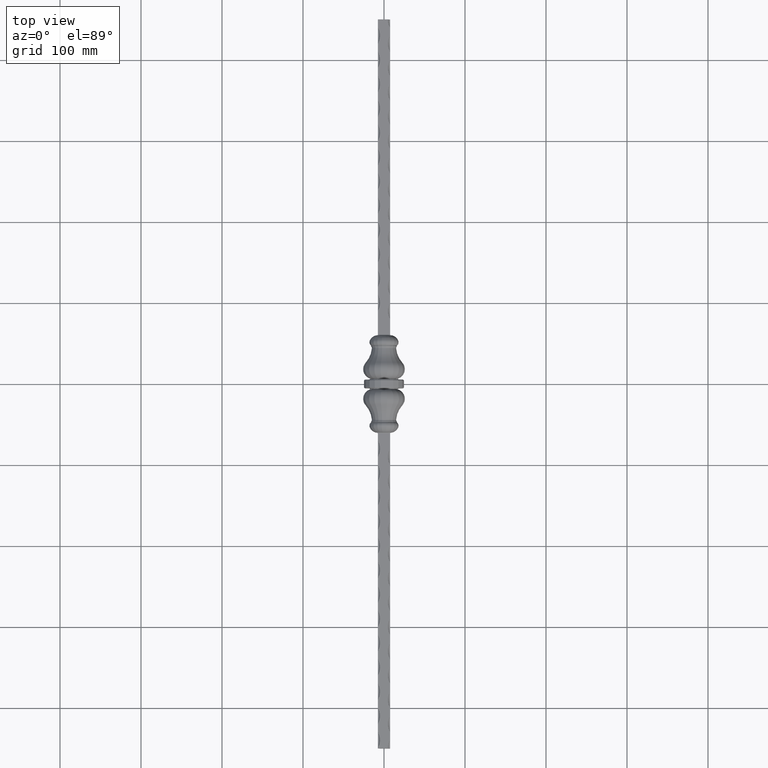
[diagram: clean part render]
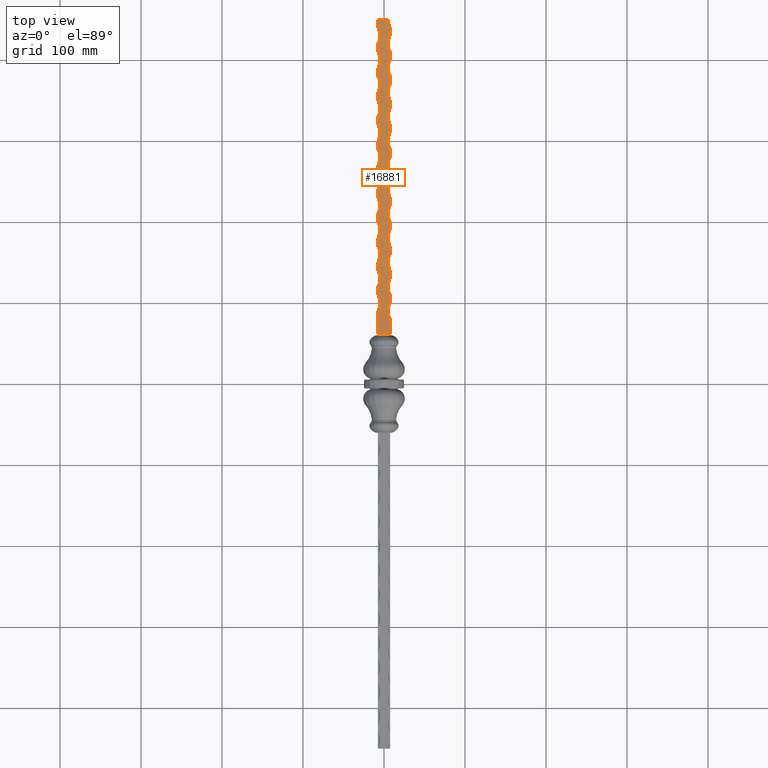
[diagram: same view with one face highlighted and labeled with its STEP entity id]
A machine part, top view. The second image highlights one B-rep face of the part: STEP entity #16881.
In plain terms, the highlighted planar face has unit normal (0, 0, -1).
Its self-contained STEP definition (entity closure, byte-faithful):
#51 = LINE ( 'NONE', #14915, #22033 ) ;
#79 = LINE ( 'NONE', #19171, #16275 ) ;
#82 = VECTOR ( 'NONE', #16747, 1000.000000000000000 ) ;
#107 = AXIS2_PLACEMENT_3D ( 'NONE', #9195, #21969, #24073 ) ;
#114 = DIRECTION ( 'NONE',  ( 0.000000000000000000, 0.000000000000000000, -1.000000000000000000 ) ) ;
#338 = EDGE_CURVE ( 'NONE', #4634, #13523, #14555, .T. ) ;
#363 = VERTEX_POINT ( 'NONE', #24797 ) ;
#385 = ORIENTED_EDGE ( 'NONE', *, *, #24298, .T. ) ;
#413 = VERTEX_POINT ( 'NONE', #7836 ) ;
#482 =( BOUNDED_CURVE ( )  B_SPLINE_CURVE ( 3, ( #26586, #19669, #20235, #9566 ),
 .UNSPECIFIED., .F., .F. ) 
 B_SPLINE_CURVE_WITH_KNOTS ( ( 4, 4 ),
 ( 1.227777006333201859, 1.321739680191400979 ),
 .UNSPECIFIED. ) 
 CURVE ( )  GEOMETRIC_REPRESENTATION_ITEM ( )  RATIONAL_B_SPLINE_CURVE ( ( 1.000000000000000000, 0.9992643866483557069, 0.9992643866483557069, 1.000000000000000000 ) ) 
 REPRESENTATION_ITEM ( '' )  );
#490 = DIRECTION ( 'NONE',  ( -1.000000000000000000, 0.000000000000000000, 0.000000000000000000 ) ) ;
#510 = LINE ( 'NONE', #22259, #20090 ) ;
#517 = ORIENTED_EDGE ( 'NONE', *, *, #2738, .T. ) ;
#613 = DIRECTION ( 'NONE',  ( -1.000000000000000000, 0.000000000000000000, 0.000000000000000000 ) ) ;
#635 = VERTEX_POINT ( 'NONE', #26429 ) ;
#669 = CIRCLE ( 'NONE', #19821, 21.25000000000003197 ) ;
#758 = CARTESIAN_POINT ( 'NONE',  ( 7.500000000000001776, 450.0000000000000000, 7.499999999999998224 ) ) ;
#831 = EDGE_CURVE ( 'NONE', #16362, #20632, #21992, .T. ) ;
#990 = ORIENTED_EDGE ( 'NONE', *, *, #19976, .T. ) ;
#1028 = VECTOR ( 'NONE', #24153, 1000.000000000000000 ) ;
#1047 = CARTESIAN_POINT ( 'NONE',  ( 5.587195937505701870, 61.12594891179882239, 7.499999999999998224 ) ) ;
#1080 = AXIS2_PLACEMENT_3D ( 'NONE', #6086, #18710, #23406 ) ;
#1096 = LINE ( 'NONE', #9035, #2098 ) ;
#1112 = CARTESIAN_POINT ( 'NONE',  ( -7.499999999999998224, 200.0000000000000000, 7.499999999999998224 ) ) ;
#1120 = AXIS2_PLACEMENT_3D ( 'NONE', #10977, #12696, #15038 ) ;
#1133 = ORIENTED_EDGE ( 'NONE', *, *, #17167, .F. ) ;
#1153 = CARTESIAN_POINT ( 'NONE',  ( -7.500000000000000000, 240.0000000000000000, 7.499999999999998224 ) ) ;
#1191 = DIRECTION ( 'NONE',  ( 0.000000000000000000, 0.000000000000000000, -1.000000000000000000 ) ) ;
#1328 = CIRCLE ( 'NONE', #7639, 21.25000000000003197 ) ;
#1359 = EDGE_CURVE ( 'NONE', #24661, #18347, #26763, .T. ) ;
#1367 = EDGE_CURVE ( 'NONE', #15978, #14338, #19558, .T. ) ;
#1380 = DIRECTION ( 'NONE',  ( -0.000000000000000000, -1.000000000000000000, -0.000000000000000000 ) ) ;
#1424 = CARTESIAN_POINT ( 'NONE',  ( -26.25000000000003553, 430.0000000000000000, 7.499999999999998224 ) ) ;
#1514 = DIRECTION ( 'NONE',  ( 0.000000000000000000, 0.000000000000000000, -1.000000000000000000 ) ) ;
#1577 = ORIENTED_EDGE ( 'NONE', *, *, #7680, .F. ) ;
#1648 = LINE ( 'NONE', #16695, #19562 ) ;
#1689 = VERTEX_POINT ( 'NONE', #4012 ) ;
#1782 = CARTESIAN_POINT ( 'NONE',  ( 7.500000000000000000, 280.0000000000000000, 7.499999999999998224 ) ) ;
#1797 = VERTEX_POINT ( 'NONE', #8840 ) ;
#1860 = CARTESIAN_POINT ( 'NONE',  ( 26.25000000000003197, 90.00000000000002842, 7.499999999999998224 ) ) ;
#1910 = DIRECTION ( 'NONE',  ( 0.000000000000000000, 0.000000000000000000, -1.000000000000000000 ) ) ;
#1925 = DIRECTION ( 'NONE',  ( 0.000000000000000000, 0.000000000000000000, -1.000000000000000000 ) ) ;
#2098 = VECTOR ( 'NONE', #21989, 1000.000000000000000 ) ;
#2191 = CARTESIAN_POINT ( 'NONE',  ( -26.25000000000003553, 190.0000000000000000, 7.499999999999998224 ) ) ;
#2263 = ORIENTED_EDGE ( 'NONE', *, *, #12308, .T. ) ;
#2281 = DIRECTION ( 'NONE',  ( -1.000000000000000000, 0.000000000000000000, 0.000000000000000000 ) ) ;
#2303 = CARTESIAN_POINT ( 'NONE',  ( -26.25000000000003553, 130.0000000000000000, 7.499999999999998224 ) ) ;
#2304 = EDGE_CURVE ( 'NONE', #4033, #27536, #1648, .T. ) ;
#2308 = VERTEX_POINT ( 'NONE', #16511 ) ;
#2412 = CARTESIAN_POINT ( 'NONE',  ( 26.25000000000003197, 420.0000000000000000, 7.499999999999998224 ) ) ;
#2573 = DIRECTION ( 'NONE',  ( 0.000000000000000000, 0.000000000000000000, -1.000000000000000000 ) ) ;
#2603 = VERTEX_POINT ( 'NONE', #26710 ) ;
#2641 = CARTESIAN_POINT ( 'NONE',  ( -7.499999999999998224, 450.0000000000000000, 7.499999999999998224 ) ) ;
#2665 = CARTESIAN_POINT ( 'NONE',  ( 7.500000000000001776, 450.0000000000000000, 7.499999999999998224 ) ) ;
#2688 = CARTESIAN_POINT ( 'NONE',  ( 26.25000000000003197, 270.0000000000000000, 7.499999999999998224 ) ) ;
#2702 = DIRECTION ( 'NONE',  ( -0.000000000000000000, -1.000000000000000000, -0.000000000000000000 ) ) ;
#2738 = EDGE_CURVE ( 'NONE', #10014, #363, #10414, .T. ) ;
#2747 = VERTEX_POINT ( 'NONE', #20852 ) ;
#2796 = ORIENTED_EDGE ( 'NONE', *, *, #11895, .T. ) ;
#2826 = ORIENTED_EDGE ( 'NONE', *, *, #21288, .T. ) ;
#2846 = CARTESIAN_POINT ( 'NONE',  ( -7.499999999999998224, 450.0000000000000000, 7.499999999999998224 ) ) ;
#2982 = EDGE_CURVE ( 'NONE', #18347, #18902, #7076, .T. ) ;
#3042 = CARTESIAN_POINT ( 'NONE',  ( 4.999999999999997335, 450.0000000000000000, 7.499999999999998224 ) ) ;
#3103 = ORIENTED_EDGE ( 'NONE', *, *, #12315, .F. ) ;
#3116 = CARTESIAN_POINT ( 'NONE',  ( 7.500000000000000000, 130.0000000000000000, 7.499999999999998224 ) ) ;
#3165 = EDGE_CURVE ( 'NONE', #22204, #25838, #12791, .T. ) ;
#3465 = CARTESIAN_POINT ( 'NONE',  ( 7.500000000000001776, 229.9999999999999716, 7.499999999999998224 ) ) ;
#3479 = EDGE_CURVE ( 'NONE', #22913, #7957, #9052, .T. ) ;
#3644 = ORIENTED_EDGE ( 'NONE', *, *, #20195, .T. ) ;
#3803 = CARTESIAN_POINT ( 'NONE',  ( 7.500000000000001776, 80.00000000000001421, 7.499999999999998224 ) ) ;
#3807 = ORIENTED_EDGE ( 'NONE', *, *, #16770, .F. ) ;
#3949 = CARTESIAN_POINT ( 'NONE',  ( -7.500000000000000000, 390.0000000000000000, 7.499999999999998224 ) ) ;
#3973 = AXIS2_PLACEMENT_3D ( 'NONE', #17155, #114, #4455 ) ;
#4012 = CARTESIAN_POINT ( 'NONE',  ( 7.500000000000001776, 109.9999999999999858, 7.499999999999998224 ) ) ;
#4033 = VERTEX_POINT ( 'NONE', #26652 ) ;
#4084 = DIRECTION ( 'NONE',  ( -1.000000000000000000, 0.000000000000000000, 0.000000000000000000 ) ) ;
#4095 = EDGE_CURVE ( 'NONE', #22401, #12943, #10334, .T. ) ;
#4112 = CARTESIAN_POINT ( 'NONE',  ( -5.587195937505683219, 61.12594891179882239, 7.499999999999998224 ) ) ;
#4117 = DIRECTION ( 'NONE',  ( -0.000000000000000000, -0.000000000000000000, 1.000000000000000000 ) ) ;
#4287 = VERTEX_POINT ( 'NONE', #6238 ) ;
#4293 = PLANE ( 'NONE',  #26071 ) ;
#4455 = DIRECTION ( 'NONE',  ( -1.000000000000000000, 0.000000000000000000, 0.000000000000000000 ) ) ;
#4525 = DIRECTION ( 'NONE',  ( -1.000000000000000000, -5.224578939412493849E-15, 0.000000000000000000 ) ) ;
#4555 = DIRECTION ( 'NONE',  ( -1.000000000000000000, 0.000000000000000000, 0.000000000000000000 ) ) ;
#4634 = VERTEX_POINT ( 'NONE', #16943 ) ;
#4686 = DIRECTION ( 'NONE',  ( -0.000000000000000000, -0.000000000000000000, 1.000000000000000000 ) ) ;
#4694 = CARTESIAN_POINT ( 'NONE',  ( -7.500000000000000000, 180.0000000000000000, 7.499999999999998224 ) ) ;
#4706 = LINE ( 'NONE', #8558, #21253 ) ;
#4710 = CARTESIAN_POINT ( 'NONE',  ( -7.499999999999998224, 410.0000000000000568, 7.499999999999998224 ) ) ;
#4762 = EDGE_CURVE ( 'NONE', #19665, #21125, #18415, .T. ) ;
#4768 = ORIENTED_EDGE ( 'NONE', *, *, #4095, .F. ) ;
#4779 = VERTEX_POINT ( 'NONE', #13008 ) ;
#4812 = ORIENTED_EDGE ( 'NONE', *, *, #9355, .F. ) ;
#4972 = CARTESIAN_POINT ( 'NONE',  ( -7.499999999999998224, 450.0000000000000000, 7.499999999999998224 ) ) ;
#5095 = CARTESIAN_POINT ( 'NONE',  ( -7.499999999999998224, 450.0000000000000000, 7.499999999999998224 ) ) ;
#5271 = VERTEX_POINT ( 'NONE', #24451 ) ;
#5314 = VERTEX_POINT ( 'NONE', #3042 ) ;
#5323 = DIRECTION ( 'NONE',  ( -1.000000000000000000, 0.000000000000000000, 0.000000000000000000 ) ) ;
#5464 = AXIS2_PLACEMENT_3D ( 'NONE', #2191, #19464, #2281 ) ;
#5528 = DIRECTION ( 'NONE',  ( 0.000000000000000000, 0.000000000000000000, -1.000000000000000000 ) ) ;
#5547 = CARTESIAN_POINT ( 'NONE',  ( 7.500000000000000000, 220.0000000000000000, 7.499999999999998224 ) ) ;
#5688 = VECTOR ( 'NONE', #11427, 1000.000000000000000 ) ;
#5719 = EDGE_CURVE ( 'NONE', #11597, #2603, #16824, .T. ) ;
#5748 = EDGE_CURVE ( 'NONE', #12616, #25942, #6388, .T. ) ;
#5752 = EDGE_CURVE ( 'NONE', #10952, #9598, #16151, .T. ) ;
#5797 = DIRECTION ( 'NONE',  ( -0.000000000000000000, -1.000000000000000000, -0.000000000000000000 ) ) ;
#6086 = CARTESIAN_POINT ( 'NONE',  ( 26.25000000000003197, 120.0000000000000000, 7.499999999999998224 ) ) ;
#6142 = ORIENTED_EDGE ( 'NONE', *, *, #3479, .F. ) ;
#6166 = ORIENTED_EDGE ( 'NONE', *, *, #15396, .T. ) ;
#6238 = CARTESIAN_POINT ( 'NONE',  ( -5.587195937505683219, 61.12594891179882239, 7.499999999999998224 ) ) ;
#6276 = ORIENTED_EDGE ( 'NONE', *, *, #7494, .T. ) ;
#6294 = EDGE_CURVE ( 'NONE', #20341, #15991, #12782, .T. ) ;
#6342 = ORIENTED_EDGE ( 'NONE', *, *, #1367, .F. ) ;
#6366 = DIRECTION ( 'NONE',  ( -0.000000000000000000, -1.000000000000000000, -0.000000000000000000 ) ) ;
#6388 = LINE ( 'NONE', #7453, #5688 ) ;
#6496 = CARTESIAN_POINT ( 'NONE',  ( -5.257826611913618997, 61.17518821496220482, 7.499999999999998224 ) ) ;
#6545 = CARTESIAN_POINT ( 'NONE',  ( -7.499999999999998224, 450.0000000000000000, 7.499999999999998224 ) ) ;
#6792 = CIRCLE ( 'NONE', #23227, 21.25000000000003197 ) ;
#6914 = VERTEX_POINT ( 'NONE', #25468 ) ;
#6930 = VECTOR ( 'NONE', #9022, 1000.000000000000000 ) ;
#6957 = VECTOR ( 'NONE', #8601, 1000.000000000000000 ) ;
#7023 = CARTESIAN_POINT ( 'NONE',  ( -7.499999999999998224, 61.19999999999997442, 7.499999999999998224 ) ) ;
#7076 = LINE ( 'NONE', #15075, #26406 ) ;
#7107 = DIRECTION ( 'NONE',  ( 0.000000000000000000, 0.000000000000000000, -1.000000000000000000 ) ) ;
#7197 = ORIENTED_EDGE ( 'NONE', *, *, #12378, .T. ) ;
#7198 = DIRECTION ( 'NONE',  ( -0.000000000000000000, -1.000000000000000000, -0.000000000000000000 ) ) ;
#7226 = CARTESIAN_POINT ( 'NONE',  ( 7.500000000000001776, 450.0000000000000000, 7.499999999999998224 ) ) ;
#7302 = CIRCLE ( 'NONE', #7465, 21.25000000000003197 ) ;
#7337 = CARTESIAN_POINT ( 'NONE',  ( 26.25000000000003197, 300.0000000000000000, 7.499999999999998224 ) ) ;
#7391 = DIRECTION ( 'NONE',  ( -0.000000000000000000, -1.000000000000000000, -0.000000000000000000 ) ) ;
#7453 = CARTESIAN_POINT ( 'NONE',  ( -7.499999999999998224, 450.0000000000000000, 7.499999999999998224 ) ) ;
#7465 = AXIS2_PLACEMENT_3D ( 'NONE', #18186, #24791, #11617 ) ;
#7494 = EDGE_CURVE ( 'NONE', #18902, #4033, #24596, .T. ) ;
#7498 = CARTESIAN_POINT ( 'NONE',  ( 26.25000000000003197, 240.0000000000000000, 7.499999999999998224 ) ) ;
#7632 = CARTESIAN_POINT ( 'NONE',  ( -7.499999999999998224, 450.0000000000000000, 7.499999999999998224 ) ) ;
#7639 = AXIS2_PLACEMENT_3D ( 'NONE', #2412, #24177, #26398 ) ;
#7646 = CIRCLE ( 'NONE', #14110, 21.25000000000003197 ) ;
#7680 = EDGE_CURVE ( 'NONE', #12943, #1689, #8995, .T. ) ;
#7766 = CARTESIAN_POINT ( 'NONE',  ( -7.500000000000000000, 270.0000000000000000, 7.499999999999998224 ) ) ;
#7836 = CARTESIAN_POINT ( 'NONE',  ( -7.499999999999998224, 110.0000000000000426, 7.499999999999998224 ) ) ;
#7957 = VERTEX_POINT ( 'NONE', #14679 ) ;
#8022 = AXIS2_PLACEMENT_3D ( 'NONE', #24064, #23693, #21871 ) ;
#8060 = VECTOR ( 'NONE', #24613, 1000.000000000000000 ) ;
#8102 = EDGE_CURVE ( 'NONE', #23019, #27234, #25945, .T. ) ;
#8116 = LINE ( 'NONE', #27167, #20613 ) ;
#8124 = DIRECTION ( 'NONE',  ( -0.000000000000000000, -1.000000000000000000, -0.000000000000000000 ) ) ;
#8211 = VERTEX_POINT ( 'NONE', #1047 ) ;
#8374 = DIRECTION ( 'NONE',  ( -0.000000000000000000, -0.000000000000000000, 1.000000000000000000 ) ) ;
#8431 = VERTEX_POINT ( 'NONE', #14646 ) ;
#8446 = FACE_OUTER_BOUND ( 'NONE', #14777, .T. ) ;
#8490 = EDGE_CURVE ( 'NONE', #17689, #413, #26612, .T. ) ;
#8516 = LINE ( 'NONE', #7023, #18291 ) ;
#8558 = CARTESIAN_POINT ( 'NONE',  ( 7.500000000000001776, 450.0000000000000000, 7.499999999999998224 ) ) ;
#8572 = AXIS2_PLACEMENT_3D ( 'NONE', #22458, #15805, #18133 ) ;
#8579 = LINE ( 'NONE', #16981, #15002 ) ;
#8599 = LINE ( 'NONE', #2665, #6930 ) ;
#8601 = DIRECTION ( 'NONE',  ( -0.000000000000000000, -1.000000000000000000, -0.000000000000000000 ) ) ;
#8711 = CARTESIAN_POINT ( 'NONE',  ( 7.500000000000000000, 250.0000000000000000, 7.499999999999998224 ) ) ;
#8724 = LINE ( 'NONE', #21677, #26038 ) ;
#8840 = CARTESIAN_POINT ( 'NONE',  ( -7.500000000000000000, 420.0000000000000000, 7.499999999999998224 ) ) ;
#8927 = AXIS2_PLACEMENT_3D ( 'NONE', #1860, #21341, #19129 ) ;
#8964 = DIRECTION ( 'NONE',  ( -0.000000000000000000, -0.000000000000000000, 1.000000000000000000 ) ) ;
#8995 = CIRCLE ( 'NONE', #1080, 21.25000000000003197 ) ;
#9022 = DIRECTION ( 'NONE',  ( -0.000000000000000000, -1.000000000000000000, -0.000000000000000000 ) ) ;
#9035 = CARTESIAN_POINT ( 'NONE',  ( 7.500000000000001776, 450.0000000000000000, 7.499999999999998224 ) ) ;
#9052 = CIRCLE ( 'NONE', #8022, 21.25000000000003197 ) ;
#9106 = LINE ( 'NONE', #19143, #26089 ) ;
#9142 = ORIENTED_EDGE ( 'NONE', *, *, #22294, .F. ) ;
#9159 = CIRCLE ( 'NONE', #27078, 21.25000000000003197 ) ;
#9195 = CARTESIAN_POINT ( 'NONE',  ( -26.25000000000003553, 280.0000000000000000, 7.499999999999998224 ) ) ;
#9203 = DIRECTION ( 'NONE',  ( -1.000000000000000000, 0.000000000000000000, 0.000000000000000000 ) ) ;
#9250 = CARTESIAN_POINT ( 'NONE',  ( 7.500000000000001776, 450.0000000000000000, 7.499999999999998224 ) ) ;
#9348 = DIRECTION ( 'NONE',  ( -1.000000000000000000, 0.000000000000000000, 0.000000000000000000 ) ) ;
#9355 = EDGE_CURVE ( 'NONE', #1689, #2747, #510, .T. ) ;
#9412 = ORIENTED_EDGE ( 'NONE', *, *, #20815, .F. ) ;
#9491 = ORIENTED_EDGE ( 'NONE', *, *, #3165, .F. ) ;
#9514 = EDGE_CURVE ( 'NONE', #2308, #24661, #8579, .T. ) ;
#9566 = CARTESIAN_POINT ( 'NONE',  ( -5.587195937505683219, 61.12594891179882239, 7.499999999999998224 ) ) ;
#9598 = VERTEX_POINT ( 'NONE', #27965 ) ;
#9781 = DIRECTION ( 'NONE',  ( -0.000000000000000000, -1.000000000000000000, -0.000000000000000000 ) ) ;
#9866 = DIRECTION ( 'NONE',  ( -1.000000000000000000, 0.000000000000000000, 0.000000000000000000 ) ) ;
#9878 = DIRECTION ( 'NONE',  ( -1.000000000000000000, 0.000000000000000000, 0.000000000000000000 ) ) ;
#9910 = CARTESIAN_POINT ( 'NONE',  ( -7.500000000000000000, 120.0000000000000000, 7.499999999999998224 ) ) ;
#9935 = DIRECTION ( 'NONE',  ( -0.000000000000000000, -0.000000000000000000, 1.000000000000000000 ) ) ;
#9938 = DIRECTION ( 'NONE',  ( -0.000000000000000000, -1.000000000000000000, -0.000000000000000000 ) ) ;
#10014 = VERTEX_POINT ( 'NONE', #27849 ) ;
#10075 =( BOUNDED_CURVE ( )  B_SPLINE_CURVE ( 3, ( #12109, #24994, #14737, #17245 ),
 .UNSPECIFIED., .F., .F. ) 
 B_SPLINE_CURVE_WITH_KNOTS ( ( 4, 4 ),
 ( 1.819852973398392360, 1.913815647256590813 ),
 .UNSPECIFIED. ) 
 CURVE ( )  GEOMETRIC_REPRESENTATION_ITEM ( )  RATIONAL_B_SPLINE_CURVE ( ( 1.000000000000000000, 0.9992643866483558179, 0.9992643866483558179, 1.000000000000000000 ) ) 
 REPRESENTATION_ITEM ( '' )  );
#10079 = CARTESIAN_POINT ( 'NONE',  ( 7.500000000000001776, 290.0000000000000000, 7.499999999999998224 ) ) ;
#10200 = EDGE_CURVE ( 'NONE', #13225, #11597, #19708, .T. ) ;
#10217 = CARTESIAN_POINT ( 'NONE',  ( 7.500000000000001776, 450.0000000000000000, 7.499999999999998224 ) ) ;
#10334 = LINE ( 'NONE', #7226, #20840 ) ;
#10414 = LINE ( 'NONE', #16288, #26744 ) ;
#10576 = CIRCLE ( 'NONE', #27488, 21.25000000000003197 ) ;
#10627 = LINE ( 'NONE', #2641, #27288 ) ;
#10657 = VERTEX_POINT ( 'NONE', #19879 ) ;
#10719 = EDGE_CURVE ( 'NONE', #27365, #25565, #18984, .T. ) ;
#10743 = ORIENTED_EDGE ( 'NONE', *, *, #338, .T. ) ;
#10756 = CARTESIAN_POINT ( 'NONE',  ( -7.499999999999998224, 260.0000000000000000, 7.499999999999998224 ) ) ;
#10874 = ORIENTED_EDGE ( 'NONE', *, *, #20683, .F. ) ;
#10875 = DIRECTION ( 'NONE',  ( 0.000000000000000000, 0.000000000000000000, -1.000000000000000000 ) ) ;
#10952 = VERTEX_POINT ( 'NONE', #3803 ) ;
#10976 = VERTEX_POINT ( 'NONE', #15213 ) ;
#10977 = CARTESIAN_POINT ( 'NONE',  ( 26.25000000000003197, 180.0000000000000000, 7.499999999999998224 ) ) ;
#10982 = EDGE_CURVE ( 'NONE', #15246, #10976, #79, .T. ) ;
#11024 = CARTESIAN_POINT ( 'NONE',  ( 7.500000000000001776, 450.0000000000000000, 7.499999999999998224 ) ) ;
#11147 = ORIENTED_EDGE ( 'NONE', *, *, #22660, .F. ) ;
#11184 = ORIENTED_EDGE ( 'NONE', *, *, #16312, .F. ) ;
#11193 = AXIS2_PLACEMENT_3D ( 'NONE', #7337, #14006, #5323 ) ;
#11233 = ORIENTED_EDGE ( 'NONE', *, *, #23553, .F. ) ;
#11295 = CIRCLE ( 'NONE', #8927, 21.25000000000003197 ) ;
#11427 = DIRECTION ( 'NONE',  ( -0.000000000000000000, -1.000000000000000000, -0.000000000000000000 ) ) ;
#11466 = DIRECTION ( 'NONE',  ( -0.000000000000000000, -1.000000000000000000, -0.000000000000000000 ) ) ;
#11485 = AXIS2_PLACEMENT_3D ( 'NONE', #19026, #8374, #25725 ) ;
#11547 = ORIENTED_EDGE ( 'NONE', *, *, #27156, .F. ) ;
#11597 = VERTEX_POINT ( 'NONE', #20952 ) ;
#11617 = DIRECTION ( 'NONE',  ( -1.000000000000000000, 0.000000000000000000, 0.000000000000000000 ) ) ;
#11621 = CARTESIAN_POINT ( 'NONE',  ( 5.257826611913637649, 61.17518821496221193, 7.499999999999999112 ) ) ;
#11655 =( BOUNDED_CURVE ( )  B_SPLINE_CURVE ( 3, ( #23820, #15148, #6496, #4112 ),
 .UNSPECIFIED., .F., .F. ) 
 B_SPLINE_CURVE_WITH_KNOTS ( ( 4, 4 ),
 ( 4.712388980384689674, 4.961445626988185253 ),
 .UNSPECIFIED. ) 
 CURVE ( )  GEOMETRIC_REPRESENTATION_ITEM ( )  RATIONAL_B_SPLINE_CURVE ( ( 1.000000000000000000, 0.9948375753481484285, 0.9948375753481484285, 1.000000000000000000 ) ) 
 REPRESENTATION_ITEM ( '' )  );
#11760 = VERTEX_POINT ( 'NONE', #12536 ) ;
#11895 = EDGE_CURVE ( 'NONE', #24743, #4634, #9159, .T. ) ;
#11967 = CARTESIAN_POINT ( 'NONE',  ( -7.499999999999998224, 320.0000000000000000, 7.499999999999998224 ) ) ;
#12028 = DIRECTION ( 'NONE',  ( -1.000000000000000000, 0.000000000000000000, 0.000000000000000000 ) ) ;
#12091 = ORIENTED_EDGE ( 'NONE', *, *, #23929, .T. ) ;
#12109 = CARTESIAN_POINT ( 'NONE',  ( 5.587195937505701870, 61.12594891179882239, 7.499999999999998224 ) ) ;
#12115 = ORIENTED_EDGE ( 'NONE', *, *, #10200, .T. ) ;
#12264 = ORIENTED_EDGE ( 'NONE', *, *, #23369, .F. ) ;
#12308 = EDGE_CURVE ( 'NONE', #27536, #17689, #6792, .T. ) ;
#12315 = EDGE_CURVE ( 'NONE', #635, #11760, #1328, .T. ) ;
#12378 = EDGE_CURVE ( 'NONE', #25565, #4287, #482, .T. ) ;
#12530 = ORIENTED_EDGE ( 'NONE', *, *, #21405, .F. ) ;
#12536 = CARTESIAN_POINT ( 'NONE',  ( 7.500000000000001776, 410.0000000000000000, 7.499999999999998224 ) ) ;
#12616 = VERTEX_POINT ( 'NONE', #1153 ) ;
#12696 = DIRECTION ( 'NONE',  ( -0.000000000000000000, -0.000000000000000000, 1.000000000000000000 ) ) ;
#12717 = DIRECTION ( 'NONE',  ( -1.000000000000000000, 0.000000000000000000, -0.000000000000000000 ) ) ;
#12782 = CIRCLE ( 'NONE', #11193, 21.25000000000003197 ) ;
#12787 = CARTESIAN_POINT ( 'NONE',  ( -26.25000000000003553, 310.0000000000000000, 7.499999999999998224 ) ) ;
#12791 = CIRCLE ( 'NONE', #8572, 21.25000000000003197 ) ;
#12943 = VERTEX_POINT ( 'NONE', #3116 ) ;
#12944 = EDGE_CURVE ( 'NONE', #24985, #13225, #7302, .T. ) ;
#13008 = CARTESIAN_POINT ( 'NONE',  ( 7.500000000000001776, 439.9999999999999432, 7.499999999999998224 ) ) ;
#13016 = ORIENTED_EDGE ( 'NONE', *, *, #2982, .T. ) ;
#13132 = EDGE_CURVE ( 'NONE', #2747, #10952, #11295, .T. ) ;
#13135 = CARTESIAN_POINT ( 'NONE',  ( 7.500000000000000000, 310.0000000000000000, 7.499999999999998224 ) ) ;
#13151 = CARTESIAN_POINT ( 'NONE',  ( -7.500000000000000000, 90.00000000000002842, 7.499999999999998224 ) ) ;
#13173 = EDGE_CURVE ( 'NONE', #21125, #6914, #21106, .T. ) ;
#13225 = VERTEX_POINT ( 'NONE', #3949 ) ;
#13327 = CARTESIAN_POINT ( 'NONE',  ( -26.25000000000003553, 100.0000000000000284, 7.499999999999998224 ) ) ;
#13455 = DIRECTION ( 'NONE',  ( -0.000000000000000000, -1.000000000000000000, -0.000000000000000000 ) ) ;
#13487 = DIRECTION ( 'NONE',  ( -0.000000000000000000, -1.000000000000000000, -0.000000000000000000 ) ) ;
#13523 = VERTEX_POINT ( 'NONE', #11967 ) ;
#13533 = DIRECTION ( 'NONE',  ( 0.000000000000000000, 0.000000000000000000, -1.000000000000000000 ) ) ;
#13554 = CIRCLE ( 'NONE', #107, 21.25000000000003197 ) ;
#13699 = ORIENTED_EDGE ( 'NONE', *, *, #14550, .T. ) ;
#13867 = CARTESIAN_POINT ( 'NONE',  ( 4.580747457131014500, 61.19999999999999574, 7.499999999999998224 ) ) ;
#13997 = ORIENTED_EDGE ( 'NONE', *, *, #4762, .F. ) ;
#14006 = DIRECTION ( 'NONE',  ( -0.000000000000000000, -0.000000000000000000, 1.000000000000000000 ) ) ;
#14081 = ORIENTED_EDGE ( 'NONE', *, *, #8490, .T. ) ;
#14110 = AXIS2_PLACEMENT_3D ( 'NONE', #1424, #1514, #18776 ) ;
#14241 = EDGE_CURVE ( 'NONE', #413, #27365, #10576, .T. ) ;
#14302 = CARTESIAN_POINT ( 'NONE',  ( -26.25000000000003553, 159.9999999999999716, 7.499999999999998224 ) ) ;
#14338 = VERTEX_POINT ( 'NONE', #18032 ) ;
#14359 = VECTOR ( 'NONE', #5797, 1000.000000000000000 ) ;
#14550 = EDGE_CURVE ( 'NONE', #5271, #27152, #8516, .T. ) ;
#14555 = LINE ( 'NONE', #2846, #1028 ) ;
#14628 = CARTESIAN_POINT ( 'NONE',  ( 7.500000000000000000, 400.0000000000000000, 7.499999999999998224 ) ) ;
#14646 = CARTESIAN_POINT ( 'NONE',  ( 7.500000000000000000, 159.9999999999999716, 7.499999999999998224 ) ) ;
#14679 = CARTESIAN_POINT ( 'NONE',  ( 7.500000000000001776, 350.0000000000000000, 7.499999999999998224 ) ) ;
#14695 = AXIS2_PLACEMENT_3D ( 'NONE', #22009, #8964, #4525 ) ;
#14737 = CARTESIAN_POINT ( 'NONE',  ( 6.871773093280872935, 60.91490900722246238, 7.499999999999998224 ) ) ;
#14777 = EDGE_LOOP ( 'NONE', ( #16013, #4812, #1577, #4768, #11147, #12530, #6342, #19389, #21573, #13997, #1133, #11233, #18265, #21570, #19381, #9142, #12264, #9412, #6142, #3807, #9491, #11547, #3103, #18894, #11184, #10874, #26481, #990, #16282, #21378, #12115, #26362, #2826, #2796, #10743, #12091, #517, #6166, #27813, #3644, #22718, #19585, #26388, #23424, #13016, #6276, #21402, #2263, #14081, #25151, #16319, #7197, #20352, #13699, #15846, #385, #16100 ) ) ;
#14915 = CARTESIAN_POINT ( 'NONE',  ( 7.500000000000001776, 450.0000000000000000, 7.499999999999998224 ) ) ;
#14984 = CARTESIAN_POINT ( 'NONE',  ( 26.25000000000003197, 329.9999999999999432, 7.499999999999998224 ) ) ;
#15002 = VECTOR ( 'NONE', #19156, 1000.000000000000000 ) ;
#15038 = DIRECTION ( 'NONE',  ( -1.000000000000000000, 0.000000000000000000, 0.000000000000000000 ) ) ;
#15075 = CARTESIAN_POINT ( 'NONE',  ( -7.499999999999998224, 450.0000000000000000, 7.499999999999998224 ) ) ;
#15148 = CARTESIAN_POINT ( 'NONE',  ( -4.920602893082775431, 61.19999999999999574, 7.499999999999998224 ) ) ;
#15213 = CARTESIAN_POINT ( 'NONE',  ( -7.499999999999998224, 440.0000000000000000, 7.499999999999998224 ) ) ;
#15246 = VERTEX_POINT ( 'NONE', #23314 ) ;
#15364 = CARTESIAN_POINT ( 'NONE',  ( 7.500000000000001776, 139.9999999999999716, 7.499999999999998224 ) ) ;
#15384 = LINE ( 'NONE', #10217, #14359 ) ;
#15396 = EDGE_CURVE ( 'NONE', #363, #16362, #13554, .T. ) ;
#15563 = AXIS2_PLACEMENT_3D ( 'NONE', #12787, #1910, #4084 ) ;
#15617 = VECTOR ( 'NONE', #13455, 1000.000000000000000 ) ;
#15805 = DIRECTION ( 'NONE',  ( -0.000000000000000000, -0.000000000000000000, 1.000000000000000000 ) ) ;
#15846 = ORIENTED_EDGE ( 'NONE', *, *, #20395, .F. ) ;
#15978 = VERTEX_POINT ( 'NONE', #27381 ) ;
#15991 = VERTEX_POINT ( 'NONE', #10079 ) ;
#16013 = ORIENTED_EDGE ( 'NONE', *, *, #13132, .F. ) ;
#16100 = ORIENTED_EDGE ( 'NONE', *, *, #5752, .F. ) ;
#16113 = LINE ( 'NONE', #16618, #27044 ) ;
#16151 = LINE ( 'NONE', #9250, #28087 ) ;
#16275 = VECTOR ( 'NONE', #6366, 1000.000000000000000 ) ;
#16282 = ORIENTED_EDGE ( 'NONE', *, *, #18749, .T. ) ;
#16288 = CARTESIAN_POINT ( 'NONE',  ( -7.499999999999998224, 450.0000000000000000, 7.499999999999998224 ) ) ;
#16312 = EDGE_CURVE ( 'NONE', #5314, #4779, #669, .T. ) ;
#16319 = ORIENTED_EDGE ( 'NONE', *, *, #10719, .T. ) ;
#16362 = VERTEX_POINT ( 'NONE', #7766 ) ;
#16464 = CARTESIAN_POINT ( 'NONE',  ( -26.25000000000003553, 339.9999999999999432, 7.499999999999998224 ) ) ;
#16511 = CARTESIAN_POINT ( 'NONE',  ( -7.500000000000000000, 210.0000000000000000, 7.499999999999998224 ) ) ;
#16618 = CARTESIAN_POINT ( 'NONE',  ( -7.499999999999998224, 450.0000000000000000, 7.499999999999998224 ) ) ;
#16695 = CARTESIAN_POINT ( 'NONE',  ( -7.499999999999998224, 450.0000000000000000, 7.499999999999998224 ) ) ;
#16747 = DIRECTION ( 'NONE',  ( -0.000000000000000000, -1.000000000000000000, -0.000000000000000000 ) ) ;
#16770 = EDGE_CURVE ( 'NONE', #25838, #22913, #8116, .T. ) ;
#16824 = CIRCLE ( 'NONE', #24444, 21.25000000000003197 ) ;
#16881 = ADVANCED_FACE ( 'NONE', ( #8446 ), #4293, .F. ) ;
#16943 = CARTESIAN_POINT ( 'NONE',  ( -7.500000000000000000, 329.9999999999999432, 7.499999999999998224 ) ) ;
#16981 = CARTESIAN_POINT ( 'NONE',  ( -7.499999999999998224, 450.0000000000000000, 7.499999999999998224 ) ) ;
#17155 = CARTESIAN_POINT ( 'NONE',  ( -26.25000000000003553, 250.0000000000000000, 7.499999999999998224 ) ) ;
#17167 = EDGE_CURVE ( 'NONE', #28007, #19665, #20252, .T. ) ;
#17245 = CARTESIAN_POINT ( 'NONE',  ( 7.500000000000001776, 60.78303146263086632, 7.499999999999998224 ) ) ;
#17427 = DIRECTION ( 'NONE',  ( 1.000000000000000000, 0.000000000000000000, 0.000000000000000000 ) ) ;
#17569 = EDGE_CURVE ( 'NONE', #6914, #15978, #23675, .T. ) ;
#17689 = VERTEX_POINT ( 'NONE', #9910 ) ;
#18032 = CARTESIAN_POINT ( 'NONE',  ( 7.500000000000001776, 169.9999999999999716, 7.499999999999998224 ) ) ;
#18096 = CARTESIAN_POINT ( 'NONE',  ( 4.920602893082795859, 61.20000000000000284, 7.499999999999999112 ) ) ;
#18133 = DIRECTION ( 'NONE',  ( -1.000000000000000000, 0.000000000000000000, 0.000000000000000000 ) ) ;
#18186 = CARTESIAN_POINT ( 'NONE',  ( -26.25000000000003553, 400.0000000000000000, 7.499999999999998224 ) ) ;
#18265 = ORIENTED_EDGE ( 'NONE', *, *, #8102, .F. ) ;
#18291 = VECTOR ( 'NONE', #22223, 1000.000000000000000 ) ;
#18347 = VERTEX_POINT ( 'NONE', #4694 ) ;
#18351 = DIRECTION ( 'NONE',  ( -0.000000000000000000, -1.000000000000000000, -0.000000000000000000 ) ) ;
#18415 = LINE ( 'NONE', #11024, #18742 ) ;
#18710 = DIRECTION ( 'NONE',  ( -0.000000000000000000, -0.000000000000000000, 1.000000000000000000 ) ) ;
#18742 = VECTOR ( 'NONE', #25932, 1000.000000000000000 ) ;
#18749 = EDGE_CURVE ( 'NONE', #1797, #24985, #16113, .T. ) ;
#18776 = DIRECTION ( 'NONE',  ( -1.000000000000000000, 0.000000000000000000, 0.000000000000000000 ) ) ;
#18894 = ORIENTED_EDGE ( 'NONE', *, *, #24011, .F. ) ;
#18902 = VERTEX_POINT ( 'NONE', #25778 ) ;
#18984 = LINE ( 'NONE', #4972, #15617 ) ;
#19024 = DIRECTION ( 'NONE',  ( -1.000000000000000000, 0.000000000000000000, 0.000000000000000000 ) ) ;
#19026 = CARTESIAN_POINT ( 'NONE',  ( 26.25000000000003197, 149.9999999999999716, 7.499999999999998224 ) ) ;
#19129 = DIRECTION ( 'NONE',  ( -1.000000000000000000, 0.000000000000000000, 0.000000000000000000 ) ) ;
#19143 = CARTESIAN_POINT ( 'NONE',  ( 7.500000000000001776, 450.0000000000000000, 7.499999999999998224 ) ) ;
#19156 = DIRECTION ( 'NONE',  ( -0.000000000000000000, -1.000000000000000000, -0.000000000000000000 ) ) ;
#19171 = CARTESIAN_POINT ( 'NONE',  ( -7.499999999999998224, 450.0000000000000000, 7.499999999999998224 ) ) ;
#19350 = VECTOR ( 'NONE', #7198, 1000.000000000000000 ) ;
#19381 = ORIENTED_EDGE ( 'NONE', *, *, #6294, .F. ) ;
#19389 = ORIENTED_EDGE ( 'NONE', *, *, #17569, .F. ) ;
#19453 = CARTESIAN_POINT ( 'NONE',  ( -26.25000000000003553, 220.0000000000000000, 7.499999999999998224 ) ) ;
#19464 = DIRECTION ( 'NONE',  ( 0.000000000000000000, 0.000000000000000000, -1.000000000000000000 ) ) ;
#19558 = CIRCLE ( 'NONE', #1120, 21.25000000000003197 ) ;
#19562 = VECTOR ( 'NONE', #8124, 1000.000000000000000 ) ;
#19585 = ORIENTED_EDGE ( 'NONE', *, *, #20311, .T. ) ;
#19596 = CIRCLE ( 'NONE', #11485, 21.25000000000003197 ) ;
#19611 = CARTESIAN_POINT ( 'NONE',  ( 7.500000000000000000, 339.9999999999999432, 7.499999999999998224 ) ) ;
#19665 = VERTEX_POINT ( 'NONE', #3465 ) ;
#19669 = CARTESIAN_POINT ( 'NONE',  ( -6.871773093280864053, 60.91490900722245527, 7.499999999999997335 ) ) ;
#19708 = LINE ( 'NONE', #5095, #19350 ) ;
#19821 = AXIS2_PLACEMENT_3D ( 'NONE', #25005, #22992, #12028 ) ;
#19879 = CARTESIAN_POINT ( 'NONE',  ( 7.500000000000001776, 319.9999999999999432, 7.499999999999998224 ) ) ;
#19905 = CIRCLE ( 'NONE', #27858, 21.25000000000003197 ) ;
#19906 = AXIS2_PLACEMENT_3D ( 'NONE', #2688, #4686, #9203 ) ;
#19965 =( BOUNDED_CURVE ( )  B_SPLINE_CURVE ( 3, ( #27102, #11621, #18096, #13867 ),
 .UNSPECIFIED., .F., .F. ) 
 B_SPLINE_CURVE_WITH_KNOTS ( ( 4, 4 ),
 ( 4.463332333781193206, 4.712388980384689674 ),
 .UNSPECIFIED. ) 
 CURVE ( )  GEOMETRIC_REPRESENTATION_ITEM ( )  RATIONAL_B_SPLINE_CURVE ( ( 1.000000000000000000, 0.9948375753481483175, 0.9948375753481483175, 1.000000000000000000 ) ) 
 REPRESENTATION_ITEM ( '' )  );
#19976 = EDGE_CURVE ( 'NONE', #10976, #1797, #7646, .T. ) ;
#20090 = VECTOR ( 'NONE', #11466, 1000.000000000000000 ) ;
#20195 = EDGE_CURVE ( 'NONE', #20632, #12616, #21839, .T. ) ;
#20213 = CARTESIAN_POINT ( 'NONE',  ( -7.499999999999998224, 140.0000000000000000, 7.499999999999998224 ) ) ;
#20235 = CARTESIAN_POINT ( 'NONE',  ( -6.233702365769644871, 61.02929897039598472, 7.499999999999997335 ) ) ;
#20252 = CIRCLE ( 'NONE', #20573, 21.25000000000003197 ) ;
#20311 = EDGE_CURVE ( 'NONE', #25942, #2308, #24222, .T. ) ;
#20341 = VERTEX_POINT ( 'NONE', #13135 ) ;
#20352 = ORIENTED_EDGE ( 'NONE', *, *, #21335, .F. ) ;
#20386 = CARTESIAN_POINT ( 'NONE',  ( -26.25000000000003553, 370.0000000000000000, 7.499999999999998224 ) ) ;
#20395 = EDGE_CURVE ( 'NONE', #8211, #27152, #19965, .T. ) ;
#20529 = CARTESIAN_POINT ( 'NONE',  ( 7.500000000000001776, 380.0000000000000000, 7.499999999999998224 ) ) ;
#20573 = AXIS2_PLACEMENT_3D ( 'NONE', #7498, #9935, #22909 ) ;
#20613 = VECTOR ( 'NONE', #18351, 1000.000000000000000 ) ;
#20632 = VERTEX_POINT ( 'NONE', #10756 ) ;
#20683 = EDGE_CURVE ( 'NONE', #15246, #5314, #10627, .T. ) ;
#20815 = EDGE_CURVE ( 'NONE', #7957, #22389, #8599, .T. ) ;
#20840 = VECTOR ( 'NONE', #7391, 1000.000000000000000 ) ;
#20852 = CARTESIAN_POINT ( 'NONE',  ( 7.500000000000000000, 100.0000000000000284, 7.499999999999998224 ) ) ;
#20952 = CARTESIAN_POINT ( 'NONE',  ( -7.499999999999998224, 380.0000000000000000, 7.499999999999998224 ) ) ;
#21106 = CIRCLE ( 'NONE', #14695, 21.25000000000003197 ) ;
#21125 = VERTEX_POINT ( 'NONE', #5547 ) ;
#21253 = VECTOR ( 'NONE', #22094, 1000.000000000000000 ) ;
#21288 = EDGE_CURVE ( 'NONE', #2603, #24743, #23451, .T. ) ;
#21335 = EDGE_CURVE ( 'NONE', #5271, #4287, #11655, .T. ) ;
#21341 = DIRECTION ( 'NONE',  ( -0.000000000000000000, -0.000000000000000000, 1.000000000000000000 ) ) ;
#21378 = ORIENTED_EDGE ( 'NONE', *, *, #12944, .T. ) ;
#21402 = ORIENTED_EDGE ( 'NONE', *, *, #2304, .T. ) ;
#21405 = EDGE_CURVE ( 'NONE', #14338, #8431, #1096, .T. ) ;
#21552 = DIRECTION ( 'NONE',  ( -0.000000000000000000, -1.000000000000000000, -0.000000000000000000 ) ) ;
#21570 = ORIENTED_EDGE ( 'NONE', *, *, #23126, .F. ) ;
#21573 = ORIENTED_EDGE ( 'NONE', *, *, #13173, .F. ) ;
#21677 = CARTESIAN_POINT ( 'NONE',  ( 7.500000000000001776, 450.0000000000000000, 7.499999999999998224 ) ) ;
#21839 = CIRCLE ( 'NONE', #3973, 21.25000000000003197 ) ;
#21871 = DIRECTION ( 'NONE',  ( -1.000000000000000000, 0.000000000000000000, 0.000000000000000000 ) ) ;
#21969 = DIRECTION ( 'NONE',  ( 0.000000000000000000, 0.000000000000000000, -1.000000000000000000 ) ) ;
#21989 = DIRECTION ( 'NONE',  ( -0.000000000000000000, -1.000000000000000000, -0.000000000000000000 ) ) ;
#21992 = LINE ( 'NONE', #7632, #25743 ) ;
#22009 = CARTESIAN_POINT ( 'NONE',  ( 26.25000000000003197, 210.0000000000000000, 7.499999999999998224 ) ) ;
#22033 = VECTOR ( 'NONE', #21552, 1000.000000000000000 ) ;
#22094 = DIRECTION ( 'NONE',  ( -0.000000000000000000, -1.000000000000000000, -0.000000000000000000 ) ) ;
#22204 = VERTEX_POINT ( 'NONE', #14628 ) ;
#22223 = DIRECTION ( 'NONE',  ( 1.000000000000000000, -0.000000000000000000, -0.000000000000000000 ) ) ;
#22259 = CARTESIAN_POINT ( 'NONE',  ( 7.500000000000001776, 450.0000000000000000, 7.499999999999998224 ) ) ;
#22294 = EDGE_CURVE ( 'NONE', #10657, #20341, #51, .T. ) ;
#22389 = VERTEX_POINT ( 'NONE', #19611 ) ;
#22401 = VERTEX_POINT ( 'NONE', #15364 ) ;
#22458 = CARTESIAN_POINT ( 'NONE',  ( 26.25000000000003197, 390.0000000000000000, 7.499999999999998224 ) ) ;
#22644 = CARTESIAN_POINT ( 'NONE',  ( 4.580747457131014500, 61.19999999999999574, 7.499999999999998224 ) ) ;
#22660 = EDGE_CURVE ( 'NONE', #8431, #22401, #19596, .T. ) ;
#22718 = ORIENTED_EDGE ( 'NONE', *, *, #5748, .T. ) ;
#22909 = DIRECTION ( 'NONE',  ( -1.000000000000000000, 0.000000000000000000, 0.000000000000000000 ) ) ;
#22913 = VERTEX_POINT ( 'NONE', #24378 ) ;
#22992 = DIRECTION ( 'NONE',  ( -0.000000000000000000, -0.000000000000000000, 1.000000000000000000 ) ) ;
#23005 = AXIS2_PLACEMENT_3D ( 'NONE', #14302, #5528, #9866 ) ;
#23019 = VERTEX_POINT ( 'NONE', #1782 ) ;
#23126 = EDGE_CURVE ( 'NONE', #15991, #23019, #9106, .T. ) ;
#23227 = AXIS2_PLACEMENT_3D ( 'NONE', #2303, #13533, #613 ) ;
#23314 = CARTESIAN_POINT ( 'NONE',  ( -7.499999999999998224, 450.0000000000000000, 7.499999999999998224 ) ) ;
#23332 = CARTESIAN_POINT ( 'NONE',  ( -7.499999999999998224, 60.78303146263086632, 7.499999999999998224 ) ) ;
#23369 = EDGE_CURVE ( 'NONE', #22389, #10657, #19905, .T. ) ;
#23406 = DIRECTION ( 'NONE',  ( -1.000000000000000000, 0.000000000000000000, 0.000000000000000000 ) ) ;
#23424 = ORIENTED_EDGE ( 'NONE', *, *, #1359, .T. ) ;
#23451 = LINE ( 'NONE', #27622, #82 ) ;
#23538 = DIRECTION ( 'NONE',  ( -0.000000000000000000, -1.000000000000000000, -0.000000000000000000 ) ) ;
#23553 = EDGE_CURVE ( 'NONE', #27234, #28007, #4706, .T. ) ;
#23675 = LINE ( 'NONE', #758, #8060 ) ;
#23693 = DIRECTION ( 'NONE',  ( -0.000000000000000000, -0.000000000000000000, 1.000000000000000000 ) ) ;
#23820 = CARTESIAN_POINT ( 'NONE',  ( -4.580747457131000289, 61.19999999999999574, 7.499999999999998224 ) ) ;
#23929 = EDGE_CURVE ( 'NONE', #13523, #10014, #25007, .T. ) ;
#24011 = EDGE_CURVE ( 'NONE', #4779, #635, #8724, .T. ) ;
#24064 = CARTESIAN_POINT ( 'NONE',  ( 26.25000000000003197, 360.0000000000000000, 7.499999999999998224 ) ) ;
#24073 = DIRECTION ( 'NONE',  ( -1.000000000000000000, 0.000000000000000000, 0.000000000000000000 ) ) ;
#24153 = DIRECTION ( 'NONE',  ( -0.000000000000000000, -1.000000000000000000, -0.000000000000000000 ) ) ;
#24177 = DIRECTION ( 'NONE',  ( -0.000000000000000000, -0.000000000000000000, 1.000000000000000000 ) ) ;
#24222 = CIRCLE ( 'NONE', #24672, 21.25000000000003197 ) ;
#24253 = DIRECTION ( 'NONE',  ( -0.000000000000000000, -1.000000000000000000, -0.000000000000000000 ) ) ;
#24298 = EDGE_CURVE ( 'NONE', #8211, #9598, #10075, .T. ) ;
#24378 = CARTESIAN_POINT ( 'NONE',  ( 7.500000000000000000, 370.0000000000000000, 7.499999999999998224 ) ) ;
#24444 = AXIS2_PLACEMENT_3D ( 'NONE', #20386, #7107, #9348 ) ;
#24451 = CARTESIAN_POINT ( 'NONE',  ( -4.580747457131000289, 61.19999999999999574, 7.499999999999998224 ) ) ;
#24596 = CIRCLE ( 'NONE', #23005, 21.25000000000003197 ) ;
#24613 = DIRECTION ( 'NONE',  ( -0.000000000000000000, -1.000000000000000000, -0.000000000000000000 ) ) ;
#24661 = VERTEX_POINT ( 'NONE', #1112 ) ;
#24672 = AXIS2_PLACEMENT_3D ( 'NONE', #19453, #10875, #4555 ) ;
#24743 = VERTEX_POINT ( 'NONE', #24977 ) ;
#24791 = DIRECTION ( 'NONE',  ( 0.000000000000000000, 0.000000000000000000, -1.000000000000000000 ) ) ;
#24797 = CARTESIAN_POINT ( 'NONE',  ( -7.499999999999998224, 290.0000000000000568, 7.499999999999998224 ) ) ;
#24977 = CARTESIAN_POINT ( 'NONE',  ( -7.499999999999998224, 350.0000000000000000, 7.499999999999998224 ) ) ;
#24985 = VERTEX_POINT ( 'NONE', #4710 ) ;
#24994 = CARTESIAN_POINT ( 'NONE',  ( 6.233702365769658194, 61.02929897039599183, 7.499999999999998224 ) ) ;
#25005 = CARTESIAN_POINT ( 'NONE',  ( 26.25000000000003197, 449.9999999999999432, 7.499999999999998224 ) ) ;
#25007 = CIRCLE ( 'NONE', #15563, 21.25000000000003197 ) ;
#25151 = ORIENTED_EDGE ( 'NONE', *, *, #14241, .T. ) ;
#25394 = CARTESIAN_POINT ( 'NONE',  ( -7.499999999999998224, 230.0000000000000000, 7.499999999999998224 ) ) ;
#25468 = CARTESIAN_POINT ( 'NONE',  ( 7.500000000000001776, 199.9999999999999716, 7.499999999999998224 ) ) ;
#25565 = VERTEX_POINT ( 'NONE', #23332 ) ;
#25725 = DIRECTION ( 'NONE',  ( -1.000000000000000000, 0.000000000000000000, 0.000000000000000000 ) ) ;
#25743 = VECTOR ( 'NONE', #9781, 1000.000000000000000 ) ;
#25778 = CARTESIAN_POINT ( 'NONE',  ( -7.499999999999998224, 169.9999999999999716, 7.499999999999998224 ) ) ;
#25838 = VERTEX_POINT ( 'NONE', #20529 ) ;
#25932 = DIRECTION ( 'NONE',  ( -0.000000000000000000, -1.000000000000000000, -0.000000000000000000 ) ) ;
#25942 = VERTEX_POINT ( 'NONE', #25394 ) ;
#25945 = CIRCLE ( 'NONE', #19906, 21.25000000000003197 ) ;
#26003 = CARTESIAN_POINT ( 'NONE',  ( -7.499999999999998224, 450.0000000000000000, 7.499999999999998224 ) ) ;
#26038 = VECTOR ( 'NONE', #24253, 1000.000000000000000 ) ;
#26071 = AXIS2_PLACEMENT_3D ( 'NONE', #26003, #1925, #12717 ) ;
#26089 = VECTOR ( 'NONE', #2702, 1000.000000000000000 ) ;
#26362 = ORIENTED_EDGE ( 'NONE', *, *, #5719, .T. ) ;
#26388 = ORIENTED_EDGE ( 'NONE', *, *, #9514, .T. ) ;
#26398 = DIRECTION ( 'NONE',  ( -1.000000000000000000, 0.000000000000000000, 0.000000000000000000 ) ) ;
#26406 = VECTOR ( 'NONE', #23538, 1000.000000000000000 ) ;
#26429 = CARTESIAN_POINT ( 'NONE',  ( 7.500000000000000000, 430.0000000000000000, 7.499999999999998224 ) ) ;
#26481 = ORIENTED_EDGE ( 'NONE', *, *, #10982, .T. ) ;
#26586 = CARTESIAN_POINT ( 'NONE',  ( -7.499999999999998224, 60.78303146263086632, 7.499999999999998224 ) ) ;
#26612 = LINE ( 'NONE', #6545, #6957 ) ;
#26652 = CARTESIAN_POINT ( 'NONE',  ( -7.500000000000000000, 149.9999999999999716, 7.499999999999998224 ) ) ;
#26710 = CARTESIAN_POINT ( 'NONE',  ( -7.500000000000000000, 360.0000000000000000, 7.499999999999998224 ) ) ;
#26744 = VECTOR ( 'NONE', #1380, 1000.000000000000000 ) ;
#26763 = CIRCLE ( 'NONE', #5464, 21.25000000000003197 ) ;
#27044 = VECTOR ( 'NONE', #9938, 1000.000000000000000 ) ;
#27078 = AXIS2_PLACEMENT_3D ( 'NONE', #16464, #1191, #9878 ) ;
#27102 = CARTESIAN_POINT ( 'NONE',  ( 5.587195937505701870, 61.12594891179882239, 7.499999999999998224 ) ) ;
#27152 = VERTEX_POINT ( 'NONE', #22644 ) ;
#27156 = EDGE_CURVE ( 'NONE', #11760, #22204, #15384, .T. ) ;
#27167 = CARTESIAN_POINT ( 'NONE',  ( 7.500000000000001776, 450.0000000000000000, 7.499999999999998224 ) ) ;
#27234 = VERTEX_POINT ( 'NONE', #27685 ) ;
#27288 = VECTOR ( 'NONE', #17427, 1000.000000000000000 ) ;
#27365 = VERTEX_POINT ( 'NONE', #13151 ) ;
#27381 = CARTESIAN_POINT ( 'NONE',  ( 7.500000000000000000, 190.0000000000000000, 7.499999999999998224 ) ) ;
#27488 = AXIS2_PLACEMENT_3D ( 'NONE', #13327, #2573, #490 ) ;
#27536 = VERTEX_POINT ( 'NONE', #20213 ) ;
#27622 = CARTESIAN_POINT ( 'NONE',  ( -7.499999999999998224, 450.0000000000000000, 7.499999999999998224 ) ) ;
#27685 = CARTESIAN_POINT ( 'NONE',  ( 7.500000000000001776, 260.0000000000000000, 7.499999999999998224 ) ) ;
#27813 = ORIENTED_EDGE ( 'NONE', *, *, #831, .T. ) ;
#27849 = CARTESIAN_POINT ( 'NONE',  ( -7.500000000000000000, 300.0000000000000000, 7.499999999999998224 ) ) ;
#27858 = AXIS2_PLACEMENT_3D ( 'NONE', #14984, #4117, #19024 ) ;
#27965 = CARTESIAN_POINT ( 'NONE',  ( 7.500000000000001776, 60.78303146263086632, 7.499999999999998224 ) ) ;
#28007 = VERTEX_POINT ( 'NONE', #8711 ) ;
#28087 = VECTOR ( 'NONE', #13487, 1000.000000000000000 ) ;